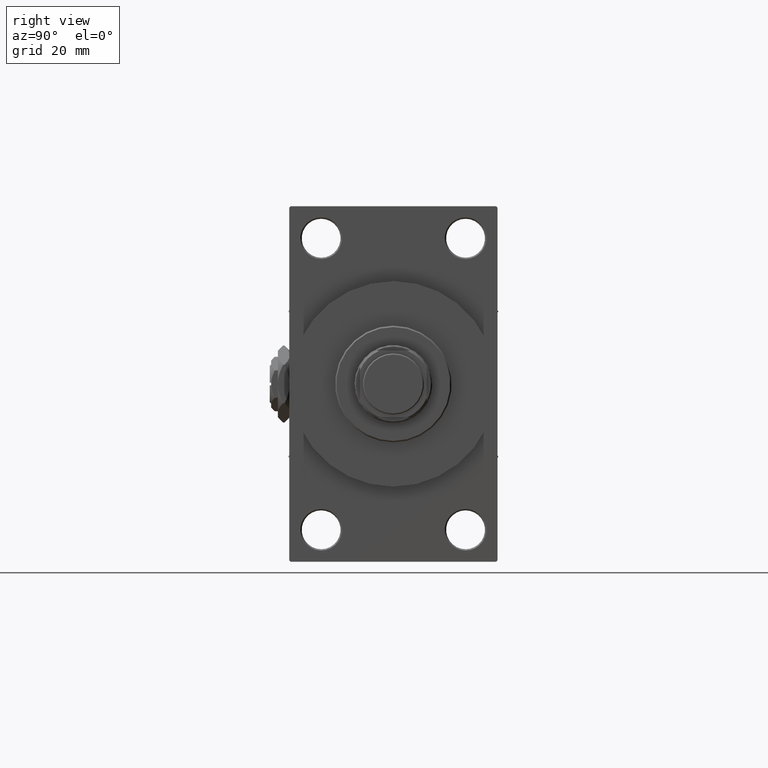
[diagram: clean part render]
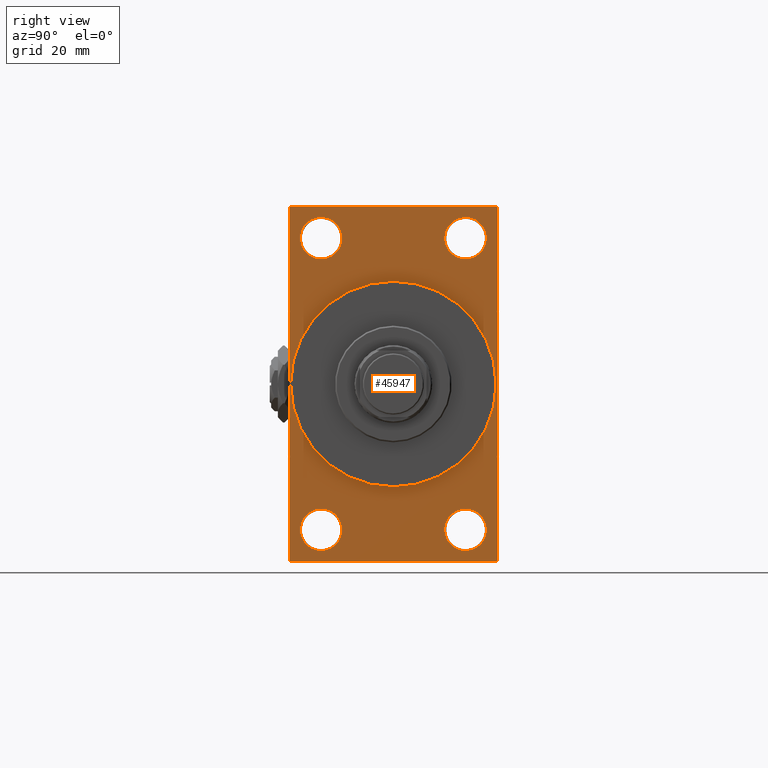
[diagram: same view with one face highlighted and labeled with its STEP entity id]
A machine part, right view. The second image highlights one B-rep face of the part: STEP entity #45947.
In plain terms, the highlighted planar face has unit normal (-1, 0, 0).
Its self-contained STEP definition (entity closure, byte-faithful):
#1207 = EDGE_CURVE ( 'NONE', #30573, #35804, #17368, .T. ) ;
#1771 = VERTEX_POINT ( 'NONE', #48564 ) ;
#1972 = DIRECTION ( 'NONE',  ( 0.000000000000000000, 0.000000000000000000, -1.000000000000000000 ) ) ;
#2553 = CIRCLE ( 'NONE', #32268, 7.500000000000007105 ) ;
#2729 = DIRECTION ( 'NONE',  ( 0.000000000000000000, -1.000000000000000000, -1.850371707708594563E-16 ) ) ;
#2869 = AXIS2_PLACEMENT_3D ( 'NONE', #28143, #32418, #16831 ) ;
#3417 = VECTOR ( 'NONE', #30685, 1000.000000000000000 ) ;
#3954 = ORIENTED_EDGE ( 'NONE', *, *, #24177, .T. ) ;
#4020 = DIRECTION ( 'NONE',  ( 0.000000000000000000, 0.000000000000000000, 1.000000000000000000 ) ) ;
#4466 = FACE_BOUND ( 'NONE', #35688, .T. ) ;
#4549 = CARTESIAN_POINT ( 'NONE',  ( 138.0000000000000000, 0.000000000000000000, 0.000000000000000000 ) ) ;
#4798 = DIRECTION ( 'NONE',  ( 0.000000000000000000, 0.000000000000000000, -1.000000000000000000 ) ) ;
#4887 = CARTESIAN_POINT ( 'NONE',  ( 138.0000000000000000, 26.00000000000000000, -44.99999999999998579 ) ) ;
#5195 = LINE ( 'NONE', #12766, #6650 ) ;
#5248 = CARTESIAN_POINT ( 'NONE',  ( 138.0000000000000000, 0.000000000000000000, 0.000000000000000000 ) ) ;
#5291 = ORIENTED_EDGE ( 'NONE', *, *, #11268, .T. ) ;
#5543 = ORIENTED_EDGE ( 'NONE', *, *, #16616, .T. ) ;
#6122 = DIRECTION ( 'NONE',  ( -0.000000000000000000, -0.7071067811865524577, -0.7071067811865426878 ) ) ;
#6163 = VERTEX_POINT ( 'NONE', #9920 ) ;
#6318 = ORIENTED_EDGE ( 'NONE', *, *, #7426, .T. ) ;
#6610 = AXIS2_PLACEMENT_3D ( 'NONE', #5248, #39728, #1972 ) ;
#6619 = LINE ( 'NONE', #14431, #38863 ) ;
#6650 = VECTOR ( 'NONE', #28587, 1000.000000000000000 ) ;
#6756 = CARTESIAN_POINT ( 'NONE',  ( 138.0000000000000000, 37.50000000000000000, 63.99999999999998579 ) ) ;
#6851 = DIRECTION ( 'NONE',  ( -1.000000000000000000, 0.000000000000000000, -0.000000000000000000 ) ) ;
#7145 = CIRCLE ( 'NONE', #28023, 7.500000000000007105 ) ;
#7426 = EDGE_CURVE ( 'NONE', #45105, #43954, #7145, .T. ) ;
#7924 = CARTESIAN_POINT ( 'NONE',  ( 138.0000000000000000, 26.00000000000000000, 60.00000000000000000 ) ) ;
#8338 = DIRECTION ( 'NONE',  ( 1.000000000000000000, 0.000000000000000000, 0.000000000000000000 ) ) ;
#8516 = CARTESIAN_POINT ( 'NONE',  ( 138.0000000000000000, 37.49999999999999289, -63.50000000000001421 ) ) ;
#8814 = EDGE_CURVE ( 'NONE', #30573, #23973, #16867, .T. ) ;
#8830 = EDGE_CURVE ( 'NONE', #27052, #38610, #10386, .T. ) ;
#9030 = CARTESIAN_POINT ( 'NONE',  ( 138.0000000000000000, 37.50000000000000000, 63.49999999999998579 ) ) ;
#9231 = CARTESIAN_POINT ( 'NONE',  ( 138.0000000000000000, -25.99999999999999645, 52.50000000000000000 ) ) ;
#9477 = DIRECTION ( 'NONE',  ( 0.000000000000000000, 0.000000000000000000, 1.000000000000000000 ) ) ;
#9569 = VECTOR ( 'NONE', #16135, 1000.000000000000000 ) ;
#9920 = CARTESIAN_POINT ( 'NONE',  ( 138.0000000000000000, -37.49999999999999289, -63.49999999999997158 ) ) ;
#10084 = CARTESIAN_POINT ( 'NONE',  ( 138.0000000000000000, -25.99999999999999645, -52.49999999999999289 ) ) ;
#10386 = CIRCLE ( 'NONE', #41737, 7.500000000000007105 ) ;
#10820 = CARTESIAN_POINT ( 'NONE',  ( 138.0000000000000000, 36.99999999999999289, -64.00000000000000000 ) ) ;
#10845 = DIRECTION ( 'NONE',  ( 0.000000000000000000, 0.000000000000000000, 1.000000000000000000 ) ) ;
#11268 = EDGE_CURVE ( 'NONE', #36127, #22389, #36175, .T. ) ;
#11332 = AXIS2_PLACEMENT_3D ( 'NONE', #4549, #8338, #4798 ) ;
#11366 = VECTOR ( 'NONE', #41016, 999.9999999999998863 ) ;
#12181 = EDGE_CURVE ( 'NONE', #35804, #32013, #29661, .T. ) ;
#12285 = CARTESIAN_POINT ( 'NONE',  ( 138.0000000000000000, 0.000000000000000000, 0.000000000000000000 ) ) ;
#12365 = CARTESIAN_POINT ( 'NONE',  ( 138.0000000000000000, 26.00000000000000000, -52.49999999999999289 ) ) ;
#12764 = FACE_OUTER_BOUND ( 'NONE', #36825, .T. ) ;
#12766 = CARTESIAN_POINT ( 'NONE',  ( 138.0000000000000000, 37.49999999999999289, -64.00000000000000000 ) ) ;
#12873 = ORIENTED_EDGE ( 'NONE', *, *, #29113, .T. ) ;
#13390 = ORIENTED_EDGE ( 'NONE', *, *, #25427, .T. ) ;
#13506 = CARTESIAN_POINT ( 'NONE',  ( 138.0000000000000000, 26.00000000000000000, 52.49999999999999289 ) ) ;
#13737 = CARTESIAN_POINT ( 'NONE',  ( 138.0000000000000000, 26.00000000000000000, -60.00000000000000000 ) ) ;
#14081 = CARTESIAN_POINT ( 'NONE',  ( 138.0000000000000000, -36.99999999999993605, -64.00000000000001421 ) ) ;
#14098 = LINE ( 'NONE', #29441, #11366 ) ;
#14431 = CARTESIAN_POINT ( 'NONE',  ( 138.0000000000000000, -37.49999999999999289, 63.99999999999997158 ) ) ;
#14574 = CIRCLE ( 'NONE', #11332, 37.00000000000000000 ) ;
#15334 = AXIS2_PLACEMENT_3D ( 'NONE', #9231, #20547, #28856 ) ;
#15405 = CARTESIAN_POINT ( 'NONE',  ( 138.0000000000000000, 37.49999999999999289, -63.50000000000001421 ) ) ;
#15807 = PLANE ( 'NONE',  #23898 ) ;
#15840 = CARTESIAN_POINT ( 'NONE',  ( 138.0000000000000000, -25.99999999999999645, 52.50000000000000000 ) ) ;
#16135 = DIRECTION ( 'NONE',  ( 0.000000000000000000, -5.421010862427522170E-17, -1.000000000000000000 ) ) ;
#16433 = ORIENTED_EDGE ( 'NONE', *, *, #41502, .T. ) ;
#16532 = FACE_BOUND ( 'NONE', #18520, .T. ) ;
#16615 = CARTESIAN_POINT ( 'NONE',  ( 138.0000000000000000, 37.50000000000000000, 63.99999999999998579 ) ) ;
#16616 = EDGE_CURVE ( 'NONE', #38610, #27052, #44168, .T. ) ;
#16831 = DIRECTION ( 'NONE',  ( 0.000000000000000000, 0.000000000000000000, 1.000000000000000000 ) ) ;
#16867 = LINE ( 'NONE', #16615, #9569 ) ;
#16899 = DIRECTION ( 'NONE',  ( 0.000000000000000000, 0.000000000000000000, 1.000000000000000000 ) ) ;
#17368 = LINE ( 'NONE', #25419, #27104 ) ;
#17614 = CARTESIAN_POINT ( 'NONE',  ( 138.0000000000000000, -25.99999999999999645, 60.00000000000000711 ) ) ;
#18520 = EDGE_LOOP ( 'NONE', ( #39471, #34665 ) ) ;
#20069 = DIRECTION ( 'NONE',  ( -1.000000000000000000, 0.000000000000000000, -0.000000000000000000 ) ) ;
#20250 = EDGE_CURVE ( 'NONE', #32166, #29339, #14574, .T. ) ;
#20304 = FACE_BOUND ( 'NONE', #31346, .T. ) ;
#20384 = DIRECTION ( 'NONE',  ( 0.000000000000000000, 0.000000000000000000, 1.000000000000000000 ) ) ;
#20547 = DIRECTION ( 'NONE',  ( -1.000000000000000000, 0.000000000000000000, -0.000000000000000000 ) ) ;
#20855 = VERTEX_POINT ( 'NONE', #25981 ) ;
#22187 = EDGE_CURVE ( 'NONE', #22389, #36127, #41136, .T. ) ;
#22199 = DIRECTION ( 'NONE',  ( 0.000000000000000000, 0.000000000000000000, -1.000000000000000000 ) ) ;
#22389 = VERTEX_POINT ( 'NONE', #34413 ) ;
#22572 = VECTOR ( 'NONE', #2729, 1000.000000000000000 ) ;
#23112 = AXIS2_PLACEMENT_3D ( 'NONE', #43797, #40036, #16899 ) ;
#23126 = DIRECTION ( 'NONE',  ( -1.000000000000000000, 0.000000000000000000, -0.000000000000000000 ) ) ;
#23388 = EDGE_CURVE ( 'NONE', #47378, #23973, #38720, .T. ) ;
#23856 = VECTOR ( 'NONE', #6122, 1000.000000000000000 ) ;
#23898 = AXIS2_PLACEMENT_3D ( 'NONE', #12285, #20069, #27612 ) ;
#23973 = VERTEX_POINT ( 'NONE', #15405 ) ;
#24177 = EDGE_CURVE ( 'NONE', #6163, #49338, #14098, .T. ) ;
#24190 = ORIENTED_EDGE ( 'NONE', *, *, #45140, .T. ) ;
#25092 = CIRCLE ( 'NONE', #6610, 37.00000000000000000 ) ;
#25419 = CARTESIAN_POINT ( 'NONE',  ( 138.0000000000000000, 36.99999999999997158, 63.99999999999998579 ) ) ;
#25427 = EDGE_CURVE ( 'NONE', #27156, #1771, #2553, .T. ) ;
#25693 = AXIS2_PLACEMENT_3D ( 'NONE', #41564, #6851, #30011 ) ;
#25981 = CARTESIAN_POINT ( 'NONE',  ( 138.0000000000000000, -37.49999999999999289, 63.49999999999994316 ) ) ;
#26465 = EDGE_CURVE ( 'NONE', #29339, #32166, #25092, .T. ) ;
#27052 = VERTEX_POINT ( 'NONE', #4887 ) ;
#27104 = VECTOR ( 'NONE', #45054, 1000.000000000000000 ) ;
#27156 = VERTEX_POINT ( 'NONE', #28772 ) ;
#27374 = FACE_BOUND ( 'NONE', #38439, .T. ) ;
#27612 = DIRECTION ( 'NONE',  ( -0.000000000000000000, 0.000000000000000000, 1.000000000000000000 ) ) ;
#27637 = EDGE_CURVE ( 'NONE', #47378, #49338, #5195, .T. ) ;
#28023 = AXIS2_PLACEMENT_3D ( 'NONE', #13506, #47966, #9477 ) ;
#28143 = CARTESIAN_POINT ( 'NONE',  ( 138.0000000000000000, 26.00000000000000000, 52.49999999999999289 ) ) ;
#28587 = DIRECTION ( 'NONE',  ( 0.000000000000000000, -1.000000000000000000, -1.850371707708594563E-16 ) ) ;
#28772 = CARTESIAN_POINT ( 'NONE',  ( 138.0000000000000000, -25.99999999999999645, -60.00000000000000000 ) ) ;
#28856 = DIRECTION ( 'NONE',  ( 0.000000000000000000, 0.000000000000000000, 1.000000000000000000 ) ) ;
#29113 = EDGE_CURVE ( 'NONE', #20855, #6163, #6619, .T. ) ;
#29339 = VERTEX_POINT ( 'NONE', #45057 ) ;
#29441 = CARTESIAN_POINT ( 'NONE',  ( 138.0000000000000000, -36.99999999999993605, -64.00000000000001421 ) ) ;
#29483 = ORIENTED_EDGE ( 'NONE', *, *, #45345, .T. ) ;
#29661 = LINE ( 'NONE', #6756, #22572 ) ;
#30011 = DIRECTION ( 'NONE',  ( 0.000000000000000000, 0.000000000000000000, 1.000000000000000000 ) ) ;
#30573 = VERTEX_POINT ( 'NONE', #9030 ) ;
#30685 = DIRECTION ( 'NONE',  ( -0.000000000000000000, 0.7071067811865573427, 0.7071067811865378028 ) ) ;
#31346 = EDGE_LOOP ( 'NONE', ( #49567, #5291 ) ) ;
#31395 = EDGE_LOOP ( 'NONE', ( #5543, #43712 ) ) ;
#31405 = FACE_BOUND ( 'NONE', #31395, .T. ) ;
#32013 = VERTEX_POINT ( 'NONE', #37719 ) ;
#32166 = VERTEX_POINT ( 'NONE', #46240 ) ;
#32268 = AXIS2_PLACEMENT_3D ( 'NONE', #10084, #45311, #10845 ) ;
#32418 = DIRECTION ( 'NONE',  ( -1.000000000000000000, 0.000000000000000000, -0.000000000000000000 ) ) ;
#34413 = CARTESIAN_POINT ( 'NONE',  ( 138.0000000000000000, -25.99999999999999645, 44.99999999999999289 ) ) ;
#34665 = ORIENTED_EDGE ( 'NONE', *, *, #26465, .F. ) ;
#35502 = DIRECTION ( 'NONE',  ( -1.000000000000000000, 0.000000000000000000, -0.000000000000000000 ) ) ;
#35552 = ORIENTED_EDGE ( 'NONE', *, *, #1207, .T. ) ;
#35688 = EDGE_LOOP ( 'NONE', ( #6318, #16433 ) ) ;
#35804 = VERTEX_POINT ( 'NONE', #36788 ) ;
#36127 = VERTEX_POINT ( 'NONE', #17614 ) ;
#36175 = CIRCLE ( 'NONE', #15334, 7.500000000000007105 ) ;
#36788 = CARTESIAN_POINT ( 'NONE',  ( 138.0000000000000000, 36.99999999999997158, 63.99999999999998579 ) ) ;
#36825 = EDGE_LOOP ( 'NONE', ( #12873, #3954, #39813, #37368, #43494, #35552, #37824, #24190 ) ) ;
#37368 = ORIENTED_EDGE ( 'NONE', *, *, #23388, .T. ) ;
#37587 = LINE ( 'NONE', #41110, #23856 ) ;
#37719 = CARTESIAN_POINT ( 'NONE',  ( 138.0000000000000000, -36.99999999999995737, 63.99999999999997158 ) ) ;
#37824 = ORIENTED_EDGE ( 'NONE', *, *, #12181, .T. ) ;
#37938 = AXIS2_PLACEMENT_3D ( 'NONE', #15840, #23126, #4020 ) ;
#38439 = EDGE_LOOP ( 'NONE', ( #13390, #29483 ) ) ;
#38610 = VERTEX_POINT ( 'NONE', #13737 ) ;
#38720 = LINE ( 'NONE', #8516, #3417 ) ;
#38863 = VECTOR ( 'NONE', #22199, 1000.000000000000000 ) ;
#39160 = CIRCLE ( 'NONE', #23112, 7.500000000000007105 ) ;
#39471 = ORIENTED_EDGE ( 'NONE', *, *, #20250, .F. ) ;
#39728 = DIRECTION ( 'NONE',  ( 1.000000000000000000, 0.000000000000000000, 0.000000000000000000 ) ) ;
#39813 = ORIENTED_EDGE ( 'NONE', *, *, #27637, .F. ) ;
#40036 = DIRECTION ( 'NONE',  ( -1.000000000000000000, 0.000000000000000000, -0.000000000000000000 ) ) ;
#41016 = DIRECTION ( 'NONE',  ( 0.000000000000000000, 0.7071067811865574537, -0.7071067811865376918 ) ) ;
#41110 = CARTESIAN_POINT ( 'NONE',  ( 138.0000000000000000, -37.49999999999999289, 63.49999999999994316 ) ) ;
#41136 = CIRCLE ( 'NONE', #37938, 7.500000000000007105 ) ;
#41502 = EDGE_CURVE ( 'NONE', #43954, #45105, #45470, .T. ) ;
#41564 = CARTESIAN_POINT ( 'NONE',  ( 138.0000000000000000, 26.00000000000000000, -52.49999999999999289 ) ) ;
#41737 = AXIS2_PLACEMENT_3D ( 'NONE', #12365, #35502, #20384 ) ;
#43494 = ORIENTED_EDGE ( 'NONE', *, *, #8814, .F. ) ;
#43712 = ORIENTED_EDGE ( 'NONE', *, *, #8830, .T. ) ;
#43797 = CARTESIAN_POINT ( 'NONE',  ( 138.0000000000000000, -25.99999999999999645, -52.49999999999999289 ) ) ;
#43954 = VERTEX_POINT ( 'NONE', #7924 ) ;
#44168 = CIRCLE ( 'NONE', #25693, 7.500000000000007105 ) ;
#45054 = DIRECTION ( 'NONE',  ( 0.000000000000000000, -0.7071067811865672237, 0.7071067811865279218 ) ) ;
#45057 = CARTESIAN_POINT ( 'NONE',  ( 138.0000000000000000, 4.531193156845206793E-15, -37.00000000000000000 ) ) ;
#45105 = VERTEX_POINT ( 'NONE', #46236 ) ;
#45140 = EDGE_CURVE ( 'NONE', #32013, #20855, #37587, .T. ) ;
#45311 = DIRECTION ( 'NONE',  ( -1.000000000000000000, 0.000000000000000000, -0.000000000000000000 ) ) ;
#45345 = EDGE_CURVE ( 'NONE', #1771, #27156, #39160, .T. ) ;
#45470 = CIRCLE ( 'NONE', #2869, 7.500000000000007105 ) ;
#45947 = ADVANCED_FACE ( 'NONE', ( #20304, #27374, #31405, #4466, #16532, #12764 ), #15807, .F. ) ;
#46236 = CARTESIAN_POINT ( 'NONE',  ( 138.0000000000000000, 26.00000000000000000, 44.99999999999998579 ) ) ;
#46240 = CARTESIAN_POINT ( 'NONE',  ( 138.0000000000000000, 0.000000000000000000, 37.00000000000000000 ) ) ;
#47378 = VERTEX_POINT ( 'NONE', #10820 ) ;
#47966 = DIRECTION ( 'NONE',  ( -1.000000000000000000, 0.000000000000000000, -0.000000000000000000 ) ) ;
#48564 = CARTESIAN_POINT ( 'NONE',  ( 138.0000000000000000, -25.99999999999999645, -44.99999999999998579 ) ) ;
#49338 = VERTEX_POINT ( 'NONE', #14081 ) ;
#49567 = ORIENTED_EDGE ( 'NONE', *, *, #22187, .T. ) ;